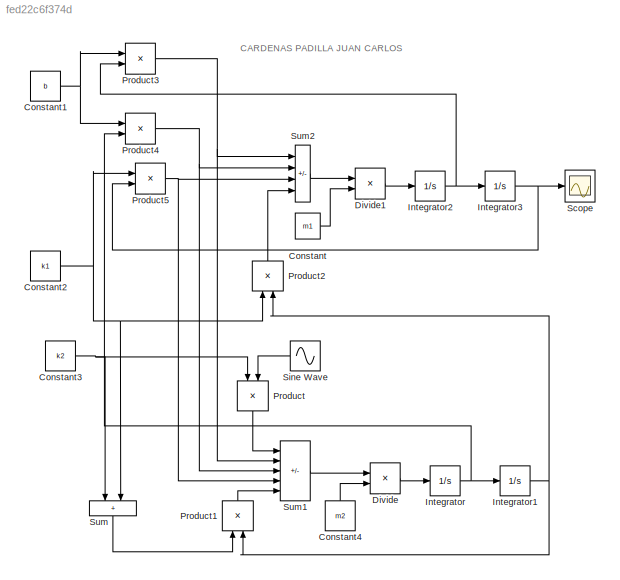
MODEL slx_fed22c6f374d
KIND model
CONFIG AbsTol = auto
CONFIG EnableMultiTasking = off
CONFIG FixedStep = auto
CONFIG MaxStep = auto
CONFIG MinStep = auto
CONFIG RelTol = 1e-3
CONFIG SampleTimeConstraint = Unconstrained
CONFIG SolverName = VariableStepAuto
CONFIG StartTime = 0.0
CONFIG StopTime = 10.0
WORKSPACE source: mxarray member
WORKSPACE b: Simulink.Parameter (value not decoded)
WORKSPACE k1: Simulink.Parameter (value not decoded)
WORKSPACE k2: Simulink.Parameter (value not decoded)
WORKSPACE m1: Simulink.Parameter (value not decoded)
WORKSPACE m2: Simulink.Parameter (value not decoded)
BLOCK [Constant] Constant
  Value = m1
BLOCK [Constant] Constant1
  Value = b
BLOCK [Constant] Constant2
  Value = k1
BLOCK [Constant] Constant3
  Value = k2
BLOCK [Constant] Constant4
  NameLocation = right
  Value = m2
BLOCK [Product] Divide
  Inputs = */
BLOCK [Product] Divide1
  Inputs = */
BLOCK [Integrator] Integrator
BLOCK [Integrator] Integrator1
BLOCK [Integrator] Integrator2
BLOCK [Integrator] Integrator3
BLOCK [Product] Product
  NameLocation = left
BLOCK [Product] Product1
  NameLocation = right
BLOCK [Product] Product2
  NameLocation = right
BLOCK [Product] Product3
BLOCK [Product] Product4
BLOCK [Product] Product5
BLOCK [Scope] Scope
  Floating = off
  NumInputPorts = 1
  ScopeSpecificationString = Simulink.scopes.TimeScopeBlockCfg('CurrentConfiguration', extmgr.ConfigurationSet(extmgr.Configuration('Core','General UI',true),extmgr.Configuration('Core','Source UI',true),extmgr.Configuration('Sources','WiredSimulink',true),extmgr.Configuration('Visuals','Time Domain',true,'SerializedDisplays',{struct('MinYLimReal','-0.07016','MaxYLimReal','0.08038','YLabelReal','','MinYLimMag','0.00000','MaxY...<+1451ch>
BLOCK [Sin] Sine Wave
  Amplitude = 0.05
  Frequency = 0.5*pi
  NameLocation = top
  SampleTime = 0
BLOCK [Sum] Sum
  IconShape = rectangular
  NameLocation = left
BLOCK [Sum] Sum1
  IconShape = rectangular
  Inputs = ++-+-
BLOCK [Sum] Sum2
  IconShape = rectangular
  Inputs = -+-+
ANNOTATION (root): CARDENAS PADILLA JUAN CARLOS
NET Constant1:1 -> Product3:1, Product4:1
NET Constant2:1 -> Product2:1, Product5:1, Sum:2
NET Constant3:1 -> Product:1, Sum:1
LINE Constant4:1 -> Divide:2
LINE Constant:1 -> Divide1:2
LINE Divide1:1 -> Integrator2:1
LINE Divide:1 -> Integrator:1
NET Integrator1:1 -> Product1:2, Product2:2
NET Integrator2:1 -> Integrator3:1, Product3:2
NET Integrator3:1 -> Product5:2, Scope:1
NET Integrator:1 -> Integrator1:1, Product4:2
LINE Product1:1 -> Sum1:5
LINE Product2:1 -> Sum2:4
NET Product3:1 -> Sum1:2, Sum2:1
NET Product4:1 -> Sum1:3, Sum2:2
NET Product5:1 -> Sum1:4, Sum2:3
LINE Product:1 -> Sum1:1
LINE Sine Wave:1 -> Product:2
LINE Sum1:1 -> Divide:1
LINE Sum2:1 -> Divide1:1
LINE Sum:1 -> Product1:1
note: NET lines group one-source signal fan-out (src -> all destinations, sorted); 1:1 wires keep LINE
